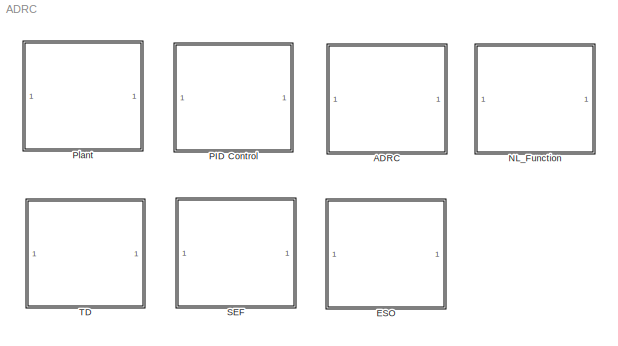
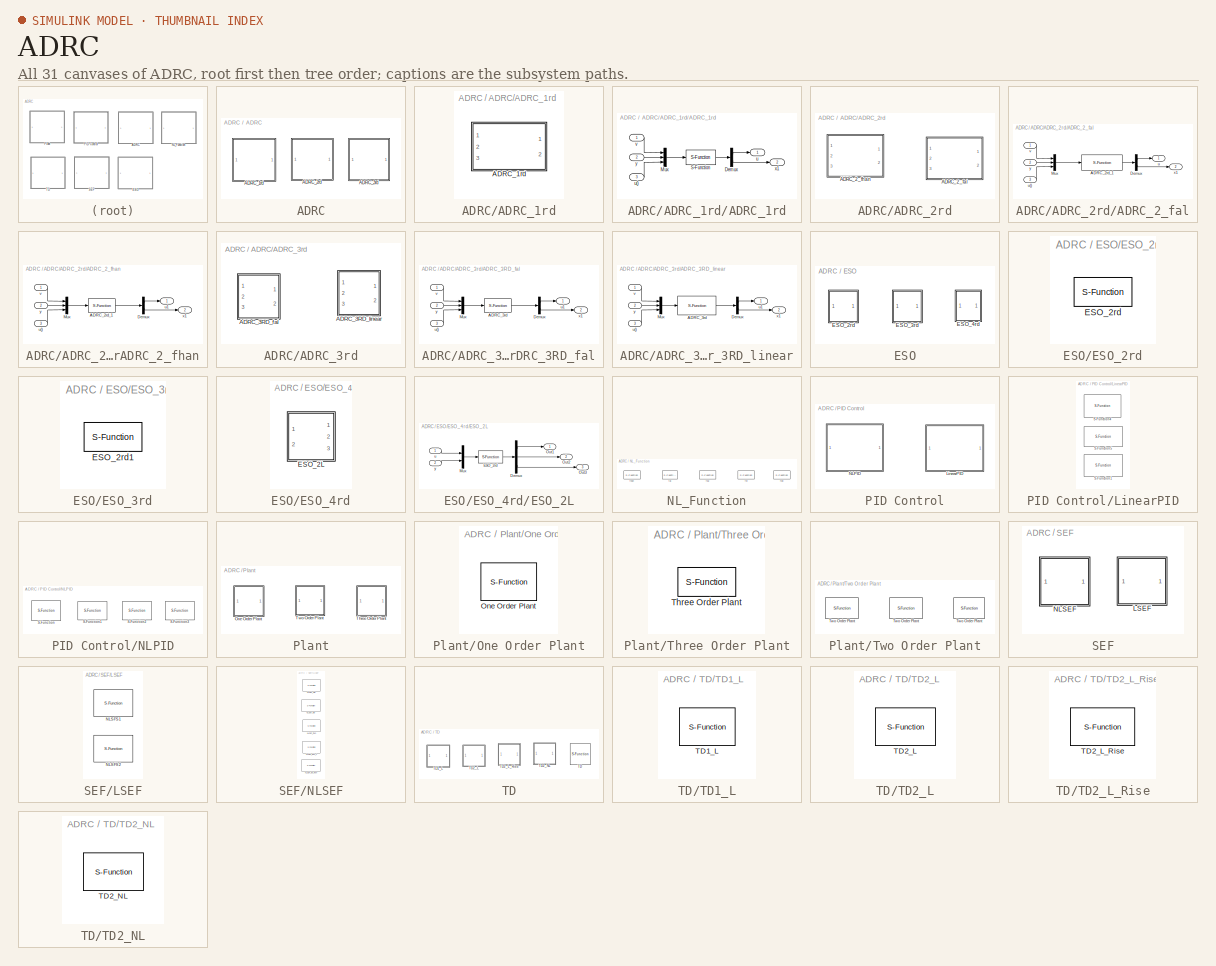
[diagram: thumbnail index - all 31 canvases of the model, root first then tree order]
MODEL ADRC
KIND library
BLOCK [SubSystem] ADRC
  FunctionWithSeparateData = off
  MaskHideContents = off
  MinAlgLoopOccurrences = off
  Opaque = off
  Ports = []
  PropExecContextOutsideSubsystem = off
  RTWSystemCode = Auto
  RequestExecContextInheritance = off
  SID = 48
BLOCK [SubSystem] ADRC/ADRC_1rd
  FunctionWithSeparateData = off
  MaskHideContents = off
  MinAlgLoopOccurrences = off
  Opaque = off
  Ports = []
  PropExecContextOutsideSubsystem = off
  RTWSystemCode = Auto
  RequestExecContextInheritance = off
  SID = 249
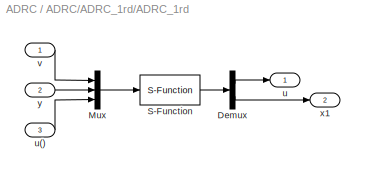
BLOCK [SubSystem] ADRC/ADRC_1rd/ADRC_1rd
  FunctionWithSeparateData = off
  MaskCallbackString = ||||
  MaskEnableString = on,on,on,on,on
  MaskHideContents = off
  MaskIconFrame = on
  MaskIconOpaque = on
  MaskIconRotate = none
  MaskIconUnits = autoscale
  MaskPortRotate = default
  MaskPromptString = r0=|h=|B01=|B02=|r=
  MaskStyleString = edit,edit,edit,edit,edit
  MaskToolTipString = on,on,on,on,on
  MaskTunableValueString = on,on,on,on,on
  MaskValueString = 0.01|0.01|100|2000|10
  MaskVariables = r0=@1;h=@2;B01=@3;B02=@4;r=@5;
  MaskVisibilityString = on,on,on,on,on
  MinAlgLoopOccurrences = off
  Opaque = off
  Ports = [3, 2]
  PropExecContextOutsideSubsystem = off
  RTWSystemCode = Auto
  RequestExecContextInheritance = off
  SID = 238
BLOCK [Demux] ADRC/ADRC_1rd/ADRC_1rd/Demux
  DisplayOption = bar
  Outputs = 2
  Ports = [1, 2]
  SID = 264
BLOCK [Mux] ADRC/ADRC_1rd/ADRC_1rd/Mux
  DisplayOption = bar
  Inputs = 3
  Ports = [3, 1]
  SID = 246
BLOCK [S-Function] ADRC/ADRC_1rd/ADRC_1rd/S-Function
  EnableBusSupport = off
  FunctionName = ADRC_1
  Parameters = r0,h,B01,B02,r
  Ports = [1, 1]
  SID = 236
BLOCK [Outport] ADRC/ADRC_1rd/ADRC_1rd/u
  IconDisplay = Port number
  SID = 247
BLOCK [Inport] ADRC/ADRC_1rd/ADRC_1rd/u()
  IconDisplay = Port number
  Port = 3
  SID = 245
BLOCK [Inport] ADRC/ADRC_1rd/ADRC_1rd/v
  IconDisplay = Port number
  SID = 243
BLOCK [Outport] ADRC/ADRC_1rd/ADRC_1rd/x1
  IconDisplay = Port number
  Port = 2
  SID = 265
BLOCK [Inport] ADRC/ADRC_1rd/ADRC_1rd/y
  IconDisplay = Port number
  Port = 2
  SID = 244
BLOCK [SubSystem] ADRC/ADRC_2rd
  FunctionWithSeparateData = off
  MaskHideContents = off
  MinAlgLoopOccurrences = off
  Opaque = off
  Ports = []
  PropExecContextOutsideSubsystem = off
  RTWSystemCode = Auto
  RequestExecContextInheritance = off
  SID = 57
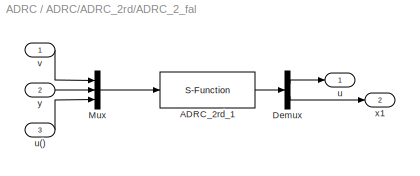
BLOCK [SubSystem] ADRC/ADRC_2rd/ADRC_2_fal
  AncestorBlock = ADRC/ADRC/ADRC_2rd/ADRC_2_order
  FunctionWithSeparateData = off
  MaskCallbackString = |||||||||
  MaskEnableString = on,on,on,on,on,on,on,on,on,on
  MaskHideContents = off
  MaskIconFrame = on
  MaskIconOpaque = on
  MaskIconRotate = none
  MaskIconUnits = autoscale
  MaskPortRotate = default
  MaskPromptString = r|h|B01=|B02=|B03=|D=|b|k1=|k2=|Ds=
  MaskStyleString = edit,edit,edit,edit,edit,edit,edit,edit,edit,edit
  MaskToolTipString = on,on,on,on,on,on,on,on,on,on
  MaskTunableValueString = on,on,on,on,on,on,on,on,on,on
  MaskValueString = 0.01|0.01|100|300|1000|0.01|1|10|5|0.01
  MaskVariables = r=@1;h=@2;B01=@3;B02=@4;B03=@5;D=@6;b=@7;k1=@8;k2=@9;Ds=@10;
  MaskVisibilityString = on,on,on,on,on,on,on,on,on,on
  MinAlgLoopOccurrences = off
  Opaque = off
  Ports = [3, 2]
  PropExecContextOutsideSubsystem = off
  RTWSystemCode = Auto
  RequestExecContextInheritance = off
  SID = 256
BLOCK [S-Function] ADRC/ADRC_2rd/ADRC_2_fal/ADRC_2rd_1
  EnableBusSupport = off
  FunctionName = ADRC_2fal
  Parameters = r,h,B01,B02,B03,D,b,k1,k2,Ds
  Ports = [1, 1]
  SID = 256:62
BLOCK [Demux] ADRC/ADRC_2rd/ADRC_2_fal/Demux
  DisplayOption = bar
  Outputs = 2
  Ports = [1, 2]
  SID = 256:256
BLOCK [Mux] ADRC/ADRC_2rd/ADRC_2_fal/Mux
  DisplayOption = bar
  Inputs = 3
  Ports = [3, 1]
  SID = 256:144
BLOCK [Outport] ADRC/ADRC_2rd/ADRC_2_fal/u
  IconDisplay = Port number
  SID = 256:257
BLOCK [Inport] ADRC/ADRC_2rd/ADRC_2_fal/u()
  IconDisplay = Port number
  Port = 3
  SID = 256:145
BLOCK [Inport] ADRC/ADRC_2rd/ADRC_2_fal/v
  IconDisplay = Port number
  SID = 256:142
BLOCK [Outport] ADRC/ADRC_2rd/ADRC_2_fal/x1
  IconDisplay = Port number
  Port = 2
  SID = 256:258
BLOCK [Inport] ADRC/ADRC_2rd/ADRC_2_fal/y
  IconDisplay = Port number
  Port = 2
  SID = 256:143
BLOCK [SubSystem] ADRC/ADRC_2rd/ADRC_2_fhan
  FunctionWithSeparateData = off
  MaskCallbackString = ||||
  MaskEnableString = on,on,on,on,on
  MaskHideContents = off
  MaskIconFrame = on
  MaskIconOpaque = on
  MaskIconRotate = none
  MaskIconUnits = autoscale
  MaskPortRotate = default
  MaskPromptString = h=|TD[r0,h]=|ESO[B01,B02,B03,D]=|NLSEF[c,r1,h1]=|b0=
  MaskStyleString = edit,edit,edit,edit,edit
  MaskToolTipString = on,on,on,on,on
  MaskTunableValueString = on,on,on,on,on
  MaskValueString = 0.01|[2,0.01]|[100,300,1000,0.01]|[0.3,5,0.03]|1
  MaskVariables = h=@1;TD=@2;ESO=@3;NLSEF=@4;b0=@5;
  MaskVisibilityString = on,on,on,on,on
  MinAlgLoopOccurrences = off
  Opaque = off
  Ports = [3, 2]
  PropExecContextOutsideSubsystem = off
  RTWSystemCode = Auto
  RequestExecContextInheritance = off
  SID = 136
BLOCK [S-Function] ADRC/ADRC_2rd/ADRC_2_fhan/ADRC_2rd_1
  EnableBusSupport = off
  FunctionName = ADRC_2
  Parameters = h,TD,ESO,NLSEF,b0
  Ports = [1, 1]
  SID = 62
BLOCK [Demux] ADRC/ADRC_2rd/ADRC_2_fhan/Demux
  DisplayOption = bar
  Outputs = 2
  Ports = [1, 2]
  SID = 266
BLOCK [Mux] ADRC/ADRC_2rd/ADRC_2_fhan/Mux
  DisplayOption = bar
  Inputs = 3
  Ports = [3, 1]
  SID = 144
BLOCK [Inport] ADRC/ADRC_2rd/ADRC_2_fhan/u()
  IconDisplay = Port number
  Port = 3
  SID = 145
BLOCK [Outport] ADRC/ADRC_2rd/ADRC_2_fhan/u1
  IconDisplay = Port number
  SID = 267
BLOCK [Inport] ADRC/ADRC_2rd/ADRC_2_fhan/v
  IconDisplay = Port number
  SID = 142
BLOCK [Outport] ADRC/ADRC_2rd/ADRC_2_fhan/x1
  IconDisplay = Port number
  Port = 2
  SID = 268
BLOCK [Inport] ADRC/ADRC_2rd/ADRC_2_fhan/y
  IconDisplay = Port number
  Port = 2
  SID = 143
BLOCK [SubSystem] ADRC/ADRC_3rd
  FunctionWithSeparateData = off
  MaskHideContents = off
  MinAlgLoopOccurrences = off
  Opaque = off
  Ports = []
  PropExecContextOutsideSubsystem = off
  RTWSystemCode = Auto
  RequestExecContextInheritance = off
  SID = 304
BLOCK [SubSystem] ADRC/ADRC_3rd/ADRC_3RD_fal
  AncestorBlock = ADRC/ADRC/ADRC_3rd/ADRC_2_fhan/Subsystem
  FunctionWithSeparateData = off
  MaskCallbackString = ||||
  MaskEnableString = on,on,on,on,on
  MaskHideContents = off
  MaskIconFrame = on
  MaskIconOpaque = on
  MaskIconRotate = none
  MaskIconUnits = autoscale
  MaskPortRotate = default
  MaskPromptString = h=|TD[r0,h1]=|ESO[B01,B02,B03,B04,h2]=|NLSEF[K1,K2,K3]|b0=
  MaskStyleString = edit,edit,edit,edit,edit
  MaskToolTipString = on,on,on,on,on
  MaskTunableValueString = on,on,on,on,on
  MaskValueString = 0.01|[0.5,0.01]|[100,300,3000,20000]|[2,5,4,0.01]|1
  MaskVariables = h=@1;TD=@2;ESO=@3;NLSEF=@4;b0=@5;
  MaskVisibilityString = on,on,on,on,on
  MinAlgLoopOccurrences = off
  Opaque = off
  Ports = [3, 2]
  PropExecContextOutsideSubsystem = off
  RTWSystemCode = Auto
  RequestExecContextInheritance = off
  SID = 325
BLOCK [S-Function] ADRC/ADRC_3rd/ADRC_3RD_fal/ADRC_3rd
  EnableBusSupport = off
  FunctionName = ADRC_3
  Parameters = h,TD,ESO,NLSEF,b0
  Ports = [1, 1]
  SID = 325:62
BLOCK [Demux] ADRC/ADRC_3rd/ADRC_3RD_fal/Demux
  DisplayOption = bar
  Outputs = 2
  Ports = [1, 2]
  SID = 325:266
BLOCK [Mux] ADRC/ADRC_3rd/ADRC_3RD_fal/Mux
  DisplayOption = bar
  Inputs = 3
  Ports = [3, 1]
  SID = 325:144
BLOCK [Inport] ADRC/ADRC_3rd/ADRC_3RD_fal/u()
  IconDisplay = Port number
  Port = 3
  SID = 325:327
BLOCK [Outport] ADRC/ADRC_3rd/ADRC_3RD_fal/u1
  IconDisplay = Port number
  SID = 325:324
BLOCK [Inport] ADRC/ADRC_3rd/ADRC_3RD_fal/v
  IconDisplay = Port number
  SID = 325:323
BLOCK [Outport] ADRC/ADRC_3rd/ADRC_3RD_fal/x1
  IconDisplay = Port number
  Port = 2
  SID = 325:326
BLOCK [Inport] ADRC/ADRC_3rd/ADRC_3RD_fal/y
  IconDisplay = Port number
  Port = 2
  SID = 325:325
BLOCK [SubSystem] ADRC/ADRC_3rd/ADRC_3RD_linear
  AncestorBlock = ADRC/ADRC/ADRC_3rd/ADRC_3RD_fal
  FunctionWithSeparateData = off
  MaskCallbackString = ||||
  MaskEnableString = on,on,on,on,on
  MaskHideContents = off
  MaskIconFrame = on
  MaskIconOpaque = on
  MaskIconRotate = none
  MaskIconUnits = autoscale
  MaskPortRotate = default
  MaskPromptString = r=|h=|ESO[B01,B02,B03,B04]=|NLSEF[K1,K2,K3]|b0=
  MaskStyleString = edit,edit,edit,edit,edit
  MaskToolTipString = on,on,on,on,on
  MaskTunableValueString = on,on,on,on,on
  MaskValueString = 0.5|0.01|[100,3000,30000,200000]|[2,5,4]|1
  MaskVariables = r=@1;h=@2;ESO=@3;NLSEF=@4;b0=@5;
  MaskVisibilityString = on,on,on,on,on
  MinAlgLoopOccurrences = off
  Opaque = off
  Ports = [3, 2]
  PropExecContextOutsideSubsystem = off
  RTWSystemCode = Auto
  RequestExecContextInheritance = off
  SID = 326
BLOCK [S-Function] ADRC/ADRC_3rd/ADRC_3RD_linear/ADRC_3rd
  EnableBusSupport = off
  FunctionName = ADRC_3_linear
  Parameters = r,h,ESO,NLSEF,b0
  Ports = [1, 1]
  SID = 326:62
BLOCK [Demux] ADRC/ADRC_3rd/ADRC_3RD_linear/Demux
  DisplayOption = bar
  Outputs = 2
  Ports = [1, 2]
  SID = 326:266
BLOCK [Mux] ADRC/ADRC_3rd/ADRC_3RD_linear/Mux
  DisplayOption = bar
  Inputs = 3
  Ports = [3, 1]
  SID = 326:144
BLOCK [Inport] ADRC/ADRC_3rd/ADRC_3RD_linear/u()
  IconDisplay = Port number
  Port = 3
  SID = 326:327
BLOCK [Outport] ADRC/ADRC_3rd/ADRC_3RD_linear/u1
  IconDisplay = Port number
  SID = 326:324
BLOCK [Inport] ADRC/ADRC_3rd/ADRC_3RD_linear/v
  IconDisplay = Port number
  SID = 326:323
BLOCK [Outport] ADRC/ADRC_3rd/ADRC_3RD_linear/x1
  IconDisplay = Port number
  Port = 2
  SID = 326:326
BLOCK [Inport] ADRC/ADRC_3rd/ADRC_3RD_linear/y
  IconDisplay = Port number
  Port = 2
  SID = 326:325
BLOCK [SubSystem] ESO
  FunctionWithSeparateData = off
  MaskHideContents = off
  MinAlgLoopOccurrences = off
  Opaque = off
  Ports = []
  PropExecContextOutsideSubsystem = off
  RTWSystemCode = Auto
  RequestExecContextInheritance = off
  SID = 23
BLOCK [SubSystem] ESO/ESO_2rd
  FunctionWithSeparateData = off
  MaskHideContents = off
  MinAlgLoopOccurrences = off
  Opaque = off
  Ports = []
  PropExecContextOutsideSubsystem = off
  RTWSystemCode = Auto
  RequestExecContextInheritance = off
  SID = 173
BLOCK [S-Function] ESO/ESO_2rd/ESO_2rd
  EnableBusSupport = off
  FunctionName = ESO_2rd
  MaskCallbackString = ||
  MaskEnableString = on,on,on
  MaskIconFrame = on
  MaskIconOpaque = on
  MaskIconRotate = none
  MaskIconUnits = autoscale
  MaskPortRotate = default
  MaskPromptString = d=|b=|bet=
  MaskStyleString = edit,edit,edit
  MaskToolTipString = on,on,on
  MaskTunableValueString = on,on,on
  MaskValueString = 0|0|0
  MaskVariables = d=@1;b=@2;bet=@3;
  MaskVisibilityString = on,on,on
  Parameters = d,bet,b
  Ports = [1, 1]
  SID = 9
BLOCK [SubSystem] ESO/ESO_3rd
  FunctionWithSeparateData = off
  MaskHideContents = off
  MinAlgLoopOccurrences = off
  Opaque = off
  Ports = []
  PropExecContextOutsideSubsystem = off
  RTWSystemCode = Auto
  RequestExecContextInheritance = off
  SID = 178
BLOCK [S-Function] ESO/ESO_3rd/ESO_2rd1
  EnableBusSupport = off
  FunctionName = ESO_3rd
  MaskCallbackString = |
  MaskEnableString = on,on
  MaskIconFrame = on
  MaskIconOpaque = on
  MaskIconRotate = none
  MaskIconUnits = autoscale
  MaskPortRotate = default
  MaskPromptString = d=|bet=
  MaskStyleString = edit,edit
  MaskToolTipString = on,on
  MaskTunableValueString = on,on
  MaskValueString = 0|0
  MaskVariables = d=@1;bet=@2;
  MaskVisibilityString = on,on
  Parameters = d,bet,b
  Ports = [1, 1]
  SID = 162
BLOCK [SubSystem] ESO/ESO_4rd
  FunctionWithSeparateData = off
  MaskHideContents = off
  MinAlgLoopOccurrences = off
  Opaque = off
  Ports = []
  PropExecContextOutsideSubsystem = off
  RTWSystemCode = Auto
  RequestExecContextInheritance = off
  SID = 258
BLOCK [SubSystem] ESO/ESO_4rd/ESO_2L
  FunctionWithSeparateData = off
  MaskCallbackString = |
  MaskEnableString = on,on
  MaskHideContents = off
  MaskIconFrame = on
  MaskIconOpaque = on
  MaskIconRotate = none
  MaskIconUnits = autoscale
  MaskPortRotate = default
  MaskPromptString = bet=[]|b=
  MaskStyleString = edit,edit
  MaskToolTipString = on,on
  MaskTunableValueString = on,on
  MaskValueString = [100 65 82]|1
  MaskVariables = bet=&1;b=&2;
  MaskVisibilityString = on,on
  MinAlgLoopOccurrences = off
  Opaque = off
  Ports = [2, 3]
  PropExecContextOutsideSubsystem = off
  RTWSystemCode = Auto
  RequestExecContextInheritance = off
  SID = 120
BLOCK [Demux] ESO/ESO_4rd/ESO_2L/Demux
  DisplayOption = bar
  Outputs = 3
  Ports = [1, 3]
  SID = 127
BLOCK [S-Function] ESO/ESO_4rd/ESO_2L/ESO_2rd
  EnableBusSupport = off
  FunctionName = ESO_2L
  Parameters = bet,b
  Ports = [1, 1]
  SID = 165
BLOCK [Mux] ESO/ESO_4rd/ESO_2L/Mux
  DisplayOption = bar
  Inputs = 2
  Ports = [2, 1]
  SID = 128
BLOCK [Outport] ESO/ESO_4rd/ESO_2L/Out1
  IconDisplay = Port number
  SID = 122
BLOCK [Outport] ESO/ESO_4rd/ESO_2L/Out2
  IconDisplay = Port number
  Port = 2
  SID = 129
BLOCK [Outport] ESO/ESO_4rd/ESO_2L/Out3
  IconDisplay = Port number
  Port = 3
  SID = 130
BLOCK [Inport] ESO/ESO_4rd/ESO_2L/u
  IconDisplay = Port number
  SID = 121
BLOCK [Inport] ESO/ESO_4rd/ESO_2L/y
  IconDisplay = Port number
  Port = 2
  SID = 125
BLOCK [SubSystem] NL_Function
  FunctionWithSeparateData = off
  MaskHideContents = off
  MinAlgLoopOccurrences = off
  Opaque = off
  Ports = []
  PropExecContextOutsideSubsystem = off
  RTWSystemCode = Auto
  RequestExecContextInheritance = off
  SID = 76
BLOCK [S-Function] NL_Function/fal
  EnableBusSupport = off
  FunctionName = fal
  Parameters = a,d
  Ports = [1, 1]
  SID = 91
BLOCK [S-Function] NL_Function/fdb
  EnableBusSupport = off
  FunctionName = fdb
  Parameters = a,b
  Ports = [1, 1]
  SID = 94
BLOCK [S-Function] NL_Function/fhan
  EnableBusSupport = off
  FunctionName = fhan
  Parameters = r,h
  Ports = [1, 1]
  SID = 90
BLOCK [S-Function] NL_Function/fsg
  EnableBusSupport = off
  FunctionName = fsg
  Parameters = a,b
  Ports = [1, 1]
  SID = 92
BLOCK [S-Function] NL_Function/fst
  EnableBusSupport = off
  FunctionName = fst
  Parameters = a,b
  Ports = [1, 1]
  SID = 93
BLOCK [SubSystem] PID Control
  FunctionWithSeparateData = off
  MaskHideContents = off
  MinAlgLoopOccurrences = off
  Opaque = off
  Ports = []
  PropExecContextOutsideSubsystem = off
  RTWSystemCode = Auto
  RequestExecContextInheritance = off
  SID = 271
BLOCK [SubSystem] PID Control/LinearPID
  FunctionWithSeparateData = off
  MaskHideContents = off
  MinAlgLoopOccurrences = off
  Opaque = off
  Ports = []
  PropExecContextOutsideSubsystem = off
  RTWSystemCode = Auto
  RequestExecContextInheritance = off
  SID = 288
BLOCK [S-Function] PID Control/LinearPID/S-Function1
  EnableBusSupport = off
  FunctionName = Linear_PD
  Parameters = Beta1,Beta2,h
  Ports = [1, 1]
  SID = 287
BLOCK [S-Function] PID Control/LinearPID/S-Function4
  EnableBusSupport = off
  FunctionName = Linear_PID_TD1_SO
  Parameters = r0,h,B,Bet,D
  Ports = [1, 1]
  SID = 276
BLOCK [S-Function] PID Control/LinearPID/S-Function5
  EnableBusSupport = off
  FunctionName = Linear_PID_2LinearTD
  Parameters = r0,r1,h,Bet
  Ports = [1, 1]
  SID = 277
BLOCK [SubSystem] PID Control/NLPID
  FunctionWithSeparateData = off
  MaskHideContents = off
  MinAlgLoopOccurrences = off
  Opaque = off
  Ports = []
  PropExecContextOutsideSubsystem = off
  RTWSystemCode = Auto
  RequestExecContextInheritance = off
  SID = 278
BLOCK [S-Function] PID Control/NLPID/S-Function
  EnableBusSupport = off
  FunctionName = NL_PID_LC
  Parameters = r0,h0,r1,h1,h,Bet
  Ports = [1, 1]
  SID = 272
BLOCK [S-Function] PID Control/NLPID/S-Function1
  EnableBusSupport = off
  FunctionName = NL_PID_fhan_c
  Parameters = r0,h0,r1,h1,h,c,r2,h2
  Ports = [1, 1]
  SID = 273
BLOCK [S-Function] PID Control/NLPID/S-Function2
  EnableBusSupport = off
  FunctionName = NL_PID_B0_fhan
  Parameters = r0,h0,r1,h1,h,Bet0,r2,h2
  Ports = [1, 1]
  SID = 274
BLOCK [S-Function] PID Control/NLPID/S-Function3
  EnableBusSupport = off
  FunctionName = NL_PID_3fal
  Parameters = r0,h0,r1,h1,h,Bet,A,D
  Ports = [1, 1]
  SID = 275
BLOCK [SubSystem] Plant
  FunctionWithSeparateData = off
  MaskHideContents = off
  MinAlgLoopOccurrences = off
  Opaque = off
  Ports = []
  PropExecContextOutsideSubsystem = off
  RTWSystemCode = Auto
  RequestExecContextInheritance = off
  SID = 18
BLOCK [SubSystem] Plant/One Order Plant
  FunctionWithSeparateData = off
  MaskHideContents = off
  MinAlgLoopOccurrences = off
  Opaque = off
  Ports = []
  PropExecContextOutsideSubsystem = off
  RTWSystemCode = Auto
  RequestExecContextInheritance = off
  SID = 208
BLOCK [S-Function] Plant/One Order Plant/One Order Plant
  EnableBusSupport = off
  Ports = [1, 1]
  SID = 106
BLOCK [SubSystem] Plant/Three Order Plant
  FunctionWithSeparateData = off
  MaskHideContents = off
  MinAlgLoopOccurrences = off
  Opaque = off
  Ports = []
  PropExecContextOutsideSubsystem = off
  RTWSystemCode = Auto
  RequestExecContextInheritance = off
  SID = 214
BLOCK [S-Function] Plant/Three Order Plant/Three Order Plant
  EnableBusSupport = off
  FunctionName = Plant3
  Ports = [1, 1]
  SID = 85
BLOCK [SubSystem] Plant/Two Order Plant
  FunctionWithSeparateData = off
  MaskHideContents = off
  MinAlgLoopOccurrences = off
  Opaque = off
  Ports = []
  PropExecContextOutsideSubsystem = off
  RTWSystemCode = Auto
  RequestExecContextInheritance = off
  SID = 107
BLOCK [S-Function] Plant/Two Order Plant/Two  Order  Plant
  EnableBusSupport = off
  FunctionName = Plant1_x1x2wt
  Ports = [1, 1]
  SID = 105
BLOCK [S-Function] Plant/Two Order Plant/Two Order  Plant
  EnableBusSupport = off
  FunctionName = Plant1_x1x2
  Ports = [1, 1]
  SID = 7
BLOCK [S-Function] Plant/Two Order Plant/Two Order Plant
  EnableBusSupport = off
  FunctionName = Plant1_fhan
  Ports = [1, 1]
  SID = 3
BLOCK [SubSystem] SEF
  FunctionWithSeparateData = off
  MaskHideContents = off
  MinAlgLoopOccurrences = off
  Opaque = off
  Ports = []
  PropExecContextOutsideSubsystem = off
  RTWSystemCode = Auto
  RequestExecContextInheritance = off
  SID = 28
BLOCK [SubSystem] SEF/LSEF
  FunctionWithSeparateData = off
  MaskHideContents = off
  MinAlgLoopOccurrences = off
  Opaque = off
  Ports = []
  PropExecContextOutsideSubsystem = off
  RTWSystemCode = Auto
  RequestExecContextInheritance = off
  SID = 229
BLOCK [S-Function] SEF/LSEF/NLSFS1
  EnableBusSupport = off
  FunctionName = NLSFS1
  Ports = [1, 1]
  SID = 101
BLOCK [S-Function] SEF/LSEF/NLSFS2
  EnableBusSupport = off
  FunctionName = NLSFS1
  Ports = [1, 1]
  SID = 217
BLOCK [SubSystem] SEF/NLSEF
  FunctionWithSeparateData = off
  MaskHideContents = off
  MinAlgLoopOccurrences = off
  Opaque = off
  Ports = []
  PropExecContextOutsideSubsystem = off
  RTWSystemCode = Auto
  RequestExecContextInheritance = off
  SID = 218
BLOCK [S-Function] SEF/NLSEF/NLSEF_2fal
  EnableBusSupport = off
  FunctionName = NLSEF_2fal
  MaskCallbackString = ||||
  MaskEnableString = on,on,on,on,on
  MaskIconFrame = on
  MaskIconOpaque = on
  MaskIconRotate = none
  MaskIconUnits = autoscale
  MaskPortRotate = default
  MaskPromptString = Beta1=|Beta2=|A1=|A2=|Delta=
  MaskStyleString = edit,edit,edit,edit,edit
  MaskToolTipString = on,on,on,on,on
  MaskTunableValueString = on,on,on,on,on
  MaskValueString = 80|50|0.25|0.5|0.02
  MaskVariables = Beta1=@1;Beta2=@2;A1=@3;A2=@4;Delta=@5;
  MaskVisibilityString = on,on,on,on,on
  Parameters = Beta1,A1,Beta2,A2,Delta
  Ports = [1, 1]
  SID = 118
BLOCK [S-Function] SEF/NLSEF/NLSEF_3fal
  EnableBusSupport = off
  FunctionName = NLSEF_3fal
  MaskCallbackString = ||
  MaskEnableString = on,on,on
  MaskIconFrame = on
  MaskIconOpaque = on
  MaskIconRotate = none
  MaskIconUnits = autoscale
  MaskPortRotate = default
  MaskPromptString = B=[ ; ; ]|A=[ ; ; ]|Delta
  MaskStyleString = edit,edit,edit
  MaskToolTipString = on,on,on
  MaskTunableValueString = on,on,on
  MaskValueString = [10,5,100]|[0.25,0.75,1.5]|0.02
  MaskVariables = B=@1;A=@2;Delta=@3;
  MaskVisibilityString = on,on,on
  Parameters = B,A,Delta
  Ports = [1, 1]
  SID = 4
BLOCK [S-Function] SEF/NLSEF/NLSEF_B0_fhan
  EnableBusSupport = off
  FunctionName = NLSEF_B0_fhan
  MaskCallbackString = ||
  MaskEnableString = on,on,on
  MaskIconFrame = on
  MaskIconOpaque = on
  MaskIconRotate = none
  MaskIconUnits = autoscale
  MaskPortRotate = default
  MaskPromptString = Beta0=|r1=|h1=
  MaskStyleString = edit,edit,edit
  MaskToolTipString = on,on,on
  MaskTunableValueString = on,on,on
  MaskValueString = 500|20|0.08
  MaskVariables = Beta0=@1;r1=@2;h1=@3;
  MaskVisibilityString = on,on,on
  Parameters = Beta0,r1,h1
  Ports = [1, 1]
  SID = 100
BLOCK [S-Function] SEF/NLSEF/NLSEF_fhan
  EnableBusSupport = off
  FunctionName = NLSEF_fhan
  MaskCallbackString = |
  MaskEnableString = on,on
  MaskIconFrame = on
  MaskIconOpaque = on
  MaskIconRotate = none
  MaskIconUnits = autoscale
  MaskPortRotate = default
  MaskPromptString = r=|h1=
  MaskStyleString = edit,edit
  MaskToolTipString = on,on
  MaskTunableValueString = on,on
  MaskValueString = 30|0.08
  MaskVariables = r=@1;h1=@2;
  MaskVisibilityString = on,on
  Parameters = r,h1
  Ports = [1, 1]
  SID = 99
BLOCK [S-Function] SEF/NLSEF/NLSEF_fhan_c
  EnableBusSupport = off
  FunctionName = NLSEF_fhan_c
  MaskCallbackString = ||
  MaskEnableString = on,on,on
  MaskIconFrame = on
  MaskIconOpaque = on
  MaskIconRotate = none
  MaskIconUnits = autoscale
  MaskPortRotate = default
  MaskPromptString = c=|r2=|h2=
  MaskStyleString = edit,edit,edit
  MaskToolTipString = on,on,on
  MaskTunableValueString = on,on,on
  MaskValueString = 1|30|0.08
  MaskVariables = c=@1;r2=@2;h2=@3;
  MaskVisibilityString = on,on,on
  Parameters = c,r2,h2
  Ports = [1, 1]
  SID = 10
BLOCK [SubSystem] TD
  FunctionWithSeparateData = off
  MaskHideContents = off
  MinAlgLoopOccurrences = off
  Opaque = off
  Ports = []
  PropExecContextOutsideSubsystem = off
  RTWSystemCode = Auto
  RequestExecContextInheritance = off
  SID = 13
BLOCK [S-Function] TD/TD
  EnableBusSupport = off
  FunctionName = TD
  MaskCallbackString = |
  MaskEnableString = on,on
  MaskIconFrame = on
  MaskIconOpaque = on
  MaskIconRotate = none
  MaskIconUnits = autoscale
  MaskPortRotate = default
  MaskPromptString = r0=|h=
  MaskStyleString = edit,edit
  MaskToolTipString = on,on
  MaskTunableValueString = on,on
  MaskValueString = 20|0.01
  MaskVariables = r0=@1;h=@2;
  MaskVisibilityString = on,on
  Parameters = r0,h
  Ports = [1, 1]
  SID = 2
BLOCK [SubSystem] TD/TD1_L
  FunctionWithSeparateData = off
  MaskHideContents = off
  MinAlgLoopOccurrences = off
  Opaque = off
  Ports = []
  PropExecContextOutsideSubsystem = off
  RTWSystemCode = Auto
  RequestExecContextInheritance = off
  SID = 197
BLOCK [S-Function] TD/TD1_L/TD1_L
  EnableBusSupport = off
  FunctionName = TD1_L
  MaskCallbackString = |
  MaskEnableString = on,on
  MaskIconFrame = on
  MaskIconOpaque = on
  MaskIconRotate = none
  MaskIconUnits = autoscale
  MaskPortRotate = default
  MaskPromptString = RisingTime=|SampleTime=
  MaskStyleString = edit,edit
  MaskToolTipString = on,on
  MaskTunableValueString = on,on
  MaskValueString = 5|0.01
  MaskVariables = RisingTime=@1;SampleTime=@2;
  MaskVisibilityString = on,on
  Parameters = RisingTime,SampleTime
  Ports = [1, 1]
  SID = 5
BLOCK [SubSystem] TD/TD2_L
  FunctionWithSeparateData = off
  MaskHideContents = off
  MinAlgLoopOccurrences = off
  Opaque = off
  Ports = []
  PropExecContextOutsideSubsystem = off
  RTWSystemCode = Auto
  RequestExecContextInheritance = off
  SID = 192
BLOCK [S-Function] TD/TD2_L/TD2_L
  EnableBusSupport = off
  FunctionName = TD2_L
  MaskCallbackString = |
  MaskEnableString = on,on
  MaskIconFrame = on
  MaskIconOpaque = on
  MaskIconRotate = none
  MaskIconUnits = autoscale
  MaskPortRotate = default
  MaskPromptString = r=|h=
  MaskStyleString = edit,edit
  MaskToolTipString = on,on
  MaskTunableValueString = on,on
  MaskValueString = 5|0.01
  MaskVariables = r=@1;h=@2;
  MaskVisibilityString = on,on
  Parameters = r,h
  Ports = [1, 1]
  SID = 95
BLOCK [SubSystem] TD/TD2_L_Rise
  FunctionWithSeparateData = off
  MaskHideContents = off
  MinAlgLoopOccurrences = off
  Opaque = off
  Ports = []
  PropExecContextOutsideSubsystem = off
  RTWSystemCode = Auto
  RequestExecContextInheritance = off
  SID = 202
BLOCK [S-Function] TD/TD2_L_Rise/TD2_L_Rise
  EnableBusSupport = off
  FunctionName = TD2_L_Rise
  MaskCallbackString = |
  MaskEnableString = on,on
  MaskIconFrame = on
  MaskIconOpaque = on
  MaskIconRotate = none
  MaskIconUnits = autoscale
  MaskPortRotate = default
  MaskPromptString = RisingTime=|SampleTime
  MaskStyleString = edit,edit
  MaskToolTipString = on,on
  MaskTunableValueString = on,on
  MaskValueString = 5|0.004
  MaskVariables = RisingTime=@1;SampleTime=@2;
  MaskVisibilityString = on,on
  Parameters = RisingTime,SampleTime
  Ports = [1, 1]
  SID = 96
BLOCK [SubSystem] TD/TD2_NL
  FunctionWithSeparateData = off
  MaskHideContents = off
  MinAlgLoopOccurrences = off
  Opaque = off
  Ports = []
  PropExecContextOutsideSubsystem = off
  RTWSystemCode = Auto
  RequestExecContextInheritance = off
  SID = 187
BLOCK [S-Function] TD/TD2_NL/TD2_NL
  EnableBusSupport = off
  FunctionName = TD2_NL
  MaskCallbackString = ||
  MaskEnableString = on,on,on
  MaskIconFrame = on
  MaskIconOpaque = on
  MaskIconRotate = none
  MaskIconUnits = autoscale
  MaskPortRotate = default
  MaskPromptString = r=|h=|h0=
  MaskStyleString = edit,edit,edit
  MaskToolTipString = on,on,on
  MaskTunableValueString = on,on,on
  MaskValueString = 20|0.01|0.01
  MaskVariables = r=@1;h=@2;h0=@3;
  MaskVisibilityString = on,on,on
  Parameters = r,h,h0
  Ports = [1, 1]
  SID = 97
LINE ADRC/ADRC_1rd/ADRC_1rd/Demux:1 -> ADRC/ADRC_1rd/ADRC_1rd/u:1
LINE ADRC/ADRC_1rd/ADRC_1rd/Demux:2 -> ADRC/ADRC_1rd/ADRC_1rd/x1:1
LINE ADRC/ADRC_1rd/ADRC_1rd/Mux:1 -> ADRC/ADRC_1rd/ADRC_1rd/S-Function:1
LINE ADRC/ADRC_1rd/ADRC_1rd/S-Function:1 -> ADRC/ADRC_1rd/ADRC_1rd/Demux:1
LINE ADRC/ADRC_1rd/ADRC_1rd/u():1 -> ADRC/ADRC_1rd/ADRC_1rd/Mux:3
LINE ADRC/ADRC_1rd/ADRC_1rd/v:1 -> ADRC/ADRC_1rd/ADRC_1rd/Mux:1
LINE ADRC/ADRC_1rd/ADRC_1rd/y:1 -> ADRC/ADRC_1rd/ADRC_1rd/Mux:2
LINE ADRC/ADRC_2rd/ADRC_2_fal/ADRC_2rd_1:1 -> ADRC/ADRC_2rd/ADRC_2_fal/Demux:1
LINE ADRC/ADRC_2rd/ADRC_2_fal/Demux:1 -> ADRC/ADRC_2rd/ADRC_2_fal/u:1
LINE ADRC/ADRC_2rd/ADRC_2_fal/Demux:2 -> ADRC/ADRC_2rd/ADRC_2_fal/x1:1
LINE ADRC/ADRC_2rd/ADRC_2_fal/Mux:1 -> ADRC/ADRC_2rd/ADRC_2_fal/ADRC_2rd_1:1
LINE ADRC/ADRC_2rd/ADRC_2_fal/u():1 -> ADRC/ADRC_2rd/ADRC_2_fal/Mux:3
LINE ADRC/ADRC_2rd/ADRC_2_fal/v:1 -> ADRC/ADRC_2rd/ADRC_2_fal/Mux:1
LINE ADRC/ADRC_2rd/ADRC_2_fal/y:1 -> ADRC/ADRC_2rd/ADRC_2_fal/Mux:2
LINE ADRC/ADRC_2rd/ADRC_2_fhan/ADRC_2rd_1:1 -> ADRC/ADRC_2rd/ADRC_2_fhan/Demux:1
LINE ADRC/ADRC_2rd/ADRC_2_fhan/Demux:1 -> ADRC/ADRC_2rd/ADRC_2_fhan/u1:1
LINE ADRC/ADRC_2rd/ADRC_2_fhan/Demux:2 -> ADRC/ADRC_2rd/ADRC_2_fhan/x1:1
LINE ADRC/ADRC_2rd/ADRC_2_fhan/Mux:1 -> ADRC/ADRC_2rd/ADRC_2_fhan/ADRC_2rd_1:1
LINE ADRC/ADRC_2rd/ADRC_2_fhan/u():1 -> ADRC/ADRC_2rd/ADRC_2_fhan/Mux:3
LINE ADRC/ADRC_2rd/ADRC_2_fhan/v:1 -> ADRC/ADRC_2rd/ADRC_2_fhan/Mux:1
LINE ADRC/ADRC_2rd/ADRC_2_fhan/y:1 -> ADRC/ADRC_2rd/ADRC_2_fhan/Mux:2
LINE ADRC/ADRC_3rd/ADRC_3RD_fal/ADRC_3rd:1 -> ADRC/ADRC_3rd/ADRC_3RD_fal/Demux:1
LINE ADRC/ADRC_3rd/ADRC_3RD_fal/Demux:1 -> ADRC/ADRC_3rd/ADRC_3RD_fal/u1:1
LINE ADRC/ADRC_3rd/ADRC_3RD_fal/Demux:2 -> ADRC/ADRC_3rd/ADRC_3RD_fal/x1:1
LINE ADRC/ADRC_3rd/ADRC_3RD_fal/Mux:1 -> ADRC/ADRC_3rd/ADRC_3RD_fal/ADRC_3rd:1
LINE ADRC/ADRC_3rd/ADRC_3RD_fal/u():1 -> ADRC/ADRC_3rd/ADRC_3RD_fal/Mux:3
LINE ADRC/ADRC_3rd/ADRC_3RD_fal/v:1 -> ADRC/ADRC_3rd/ADRC_3RD_fal/Mux:1
LINE ADRC/ADRC_3rd/ADRC_3RD_fal/y:1 -> ADRC/ADRC_3rd/ADRC_3RD_fal/Mux:2
LINE ADRC/ADRC_3rd/ADRC_3RD_linear/ADRC_3rd:1 -> ADRC/ADRC_3rd/ADRC_3RD_linear/Demux:1
LINE ADRC/ADRC_3rd/ADRC_3RD_linear/Demux:1 -> ADRC/ADRC_3rd/ADRC_3RD_linear/u1:1
LINE ADRC/ADRC_3rd/ADRC_3RD_linear/Demux:2 -> ADRC/ADRC_3rd/ADRC_3RD_linear/x1:1
LINE ADRC/ADRC_3rd/ADRC_3RD_linear/Mux:1 -> ADRC/ADRC_3rd/ADRC_3RD_linear/ADRC_3rd:1
LINE ADRC/ADRC_3rd/ADRC_3RD_linear/u():1 -> ADRC/ADRC_3rd/ADRC_3RD_linear/Mux:3
LINE ADRC/ADRC_3rd/ADRC_3RD_linear/v:1 -> ADRC/ADRC_3rd/ADRC_3RD_linear/Mux:1
LINE ADRC/ADRC_3rd/ADRC_3RD_linear/y:1 -> ADRC/ADRC_3rd/ADRC_3RD_linear/Mux:2
LINE ESO/ESO_4rd/ESO_2L/Demux:1 -> ESO/ESO_4rd/ESO_2L/Out1:1
LINE ESO/ESO_4rd/ESO_2L/Demux:2 -> ESO/ESO_4rd/ESO_2L/Out2:1
LINE ESO/ESO_4rd/ESO_2L/Demux:3 -> ESO/ESO_4rd/ESO_2L/Out3:1
LINE ESO/ESO_4rd/ESO_2L/ESO_2rd:1 -> ESO/ESO_4rd/ESO_2L/Demux:1
LINE ESO/ESO_4rd/ESO_2L/Mux:1 -> ESO/ESO_4rd/ESO_2L/ESO_2rd:1
LINE ESO/ESO_4rd/ESO_2L/u:1 -> ESO/ESO_4rd/ESO_2L/Mux:1
LINE ESO/ESO_4rd/ESO_2L/y:1 -> ESO/ESO_4rd/ESO_2L/Mux:2
